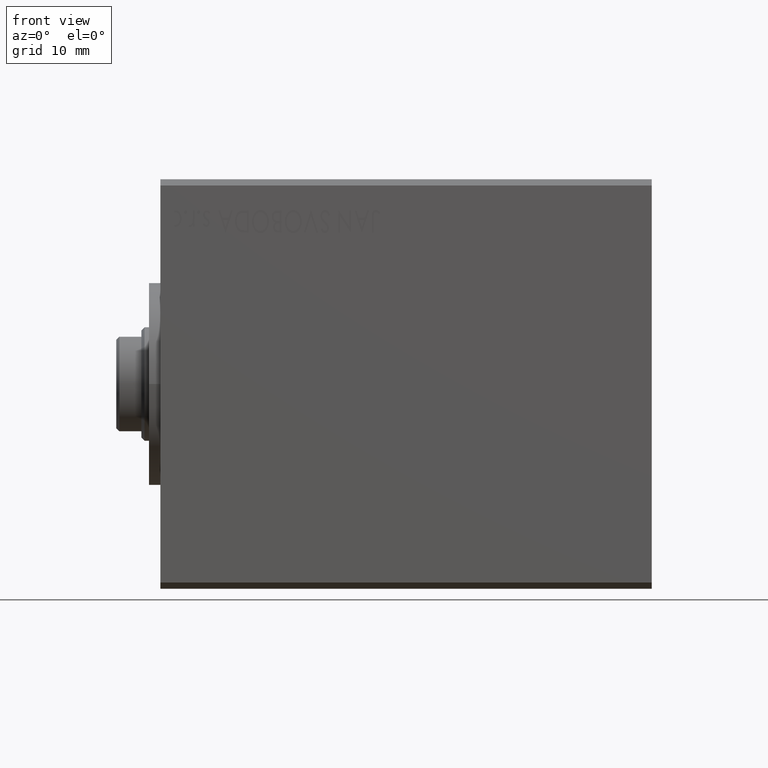
[diagram: clean part render]
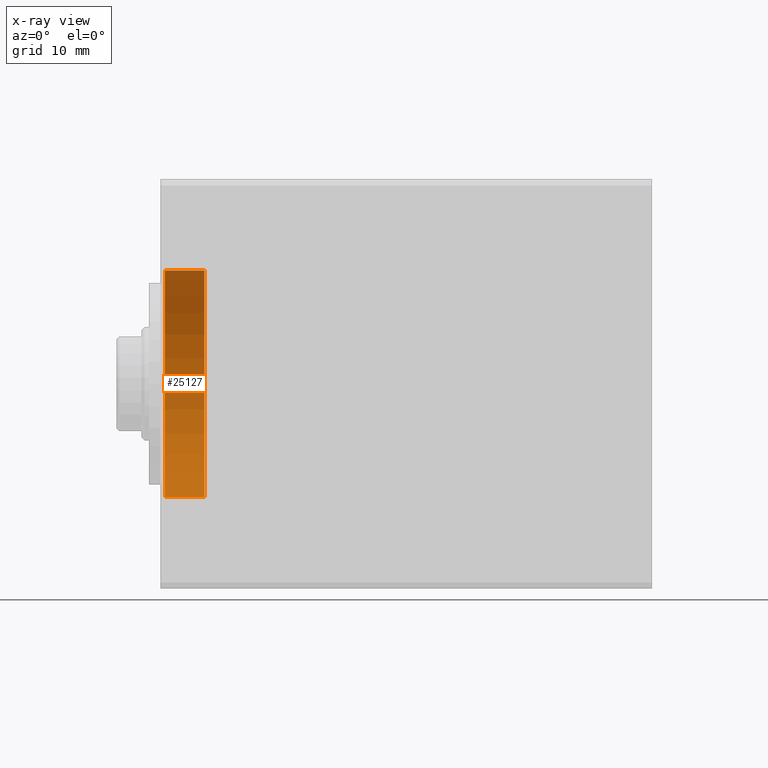
[diagram: x-ray — body ghosted, one internal face saturated and labeled with its STEP entity id]
A machine part, front view, then the same camera in x-ray: the body is ghosted and one INTERNAL B-rep face — a face not visible from any outside direction — is saturated and labeled: STEP entity #25127.
In plain terms, the highlighted cylindrical surface (partial cylindrical patch) has radius 18 mm, axis along (-1, -0, -0).
Its self-contained STEP definition (entity closure, byte-faithful):
#1423 = DIRECTION ( 'NONE',  ( 0.000000000000000000, 0.000000000000000000, 1.000000000000000000 ) ) ;
#1477 = EDGE_CURVE ( 'NONE', #14021, #29403, #37192, .T. ) ;
#2647 = FACE_OUTER_BOUND ( 'NONE', #25611, .T. ) ;
#2868 = DIRECTION ( 'NONE',  ( 0.000000000000000000, 0.000000000000000000, 1.000000000000000000 ) ) ;
#3517 = CARTESIAN_POINT ( 'NONE',  ( 7.000000000000000000, 0.000000000000000000, 0.000000000000000000 ) ) ;
#5710 = CARTESIAN_POINT ( 'NONE',  ( 7.000000000000000000, 0.000000000000000000, 18.00000000000000000 ) ) ;
#7292 = AXIS2_PLACEMENT_3D ( 'NONE', #14049, #24953, #11358 ) ;
#7670 = EDGE_CURVE ( 'NONE', #23066, #34267, #9582, .T. ) ;
#9582 = CIRCLE ( 'NONE', #28121, 18.00000000000000000 ) ;
#9988 = CYLINDRICAL_SURFACE ( 'NONE', #37802, 18.00000000000000000 ) ;
#11358 = DIRECTION ( 'NONE',  ( 0.000000000000000000, 0.000000000000000000, -1.000000000000000000 ) ) ;
#11665 = ORIENTED_EDGE ( 'NONE', *, *, #7670, .F. ) ;
#12855 = CARTESIAN_POINT ( 'NONE',  ( 7.000000000000000000, 2.204364238465235428E-15, -18.00000000000000000 ) ) ;
#13996 = ORIENTED_EDGE ( 'NONE', *, *, #1477, .T. ) ;
#14021 = VERTEX_POINT ( 'NONE', #43399 ) ;
#14049 = CARTESIAN_POINT ( 'NONE',  ( 0.7000000000000166089, 0.000000000000000000, 0.000000000000000000 ) ) ;
#14153 = VECTOR ( 'NONE', #43188, 1000.000000000000000 ) ;
#16235 = CARTESIAN_POINT ( 'NONE',  ( 7.000000000000000000, 0.000000000000000000, 18.00000000000000000 ) ) ;
#18059 = CARTESIAN_POINT ( 'NONE',  ( 7.000000000000000000, 2.204364238465235428E-15, -18.00000000000000000 ) ) ;
#18372 = CARTESIAN_POINT ( 'NONE',  ( 7.000000000000000000, 0.000000000000000000, 0.000000000000000000 ) ) ;
#18833 = ORIENTED_EDGE ( 'NONE', *, *, #30724, .T. ) ;
#19801 = CARTESIAN_POINT ( 'NONE',  ( 0.7000000000000166089, 2.204364238465235428E-15, -18.00000000000000000 ) ) ;
#19807 = ORIENTED_EDGE ( 'NONE', *, *, #41084, .F. ) ;
#23066 = VERTEX_POINT ( 'NONE', #16235 ) ;
#24953 = DIRECTION ( 'NONE',  ( -1.000000000000000000, 0.000000000000000000, 0.000000000000000000 ) ) ;
#25127 = ADVANCED_FACE ( 'NONE', ( #2647 ), #9988, .F. ) ;
#25611 = EDGE_LOOP ( 'NONE', ( #19807, #11665, #18833, #13996 ) ) ;
#28121 = AXIS2_PLACEMENT_3D ( 'NONE', #18372, #31977, #1423 ) ;
#29403 = VERTEX_POINT ( 'NONE', #19801 ) ;
#30724 = EDGE_CURVE ( 'NONE', #23066, #14021, #36268, .T. ) ;
#31977 = DIRECTION ( 'NONE',  ( -1.000000000000000000, 0.000000000000000000, 0.000000000000000000 ) ) ;
#33204 = DIRECTION ( 'NONE',  ( -1.000000000000000000, -0.000000000000000000, -0.000000000000000000 ) ) ;
#34267 = VERTEX_POINT ( 'NONE', #18059 ) ;
#35792 = VECTOR ( 'NONE', #43400, 1000.000000000000000 ) ;
#36268 = LINE ( 'NONE', #5710, #35792 ) ;
#37192 = CIRCLE ( 'NONE', #7292, 18.00000000000000000 ) ;
#37802 = AXIS2_PLACEMENT_3D ( 'NONE', #3517, #33204, #2868 ) ;
#41084 = EDGE_CURVE ( 'NONE', #34267, #29403, #42965, .T. ) ;
#42965 = LINE ( 'NONE', #12855, #14153 ) ;
#43188 = DIRECTION ( 'NONE',  ( -1.000000000000000000, -0.000000000000000000, -0.000000000000000000 ) ) ;
#43399 = CARTESIAN_POINT ( 'NONE',  ( 0.7000000000000166089, 0.000000000000000000, 18.00000000000000000 ) ) ;
#43400 = DIRECTION ( 'NONE',  ( -1.000000000000000000, -0.000000000000000000, -0.000000000000000000 ) ) ;